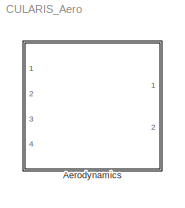
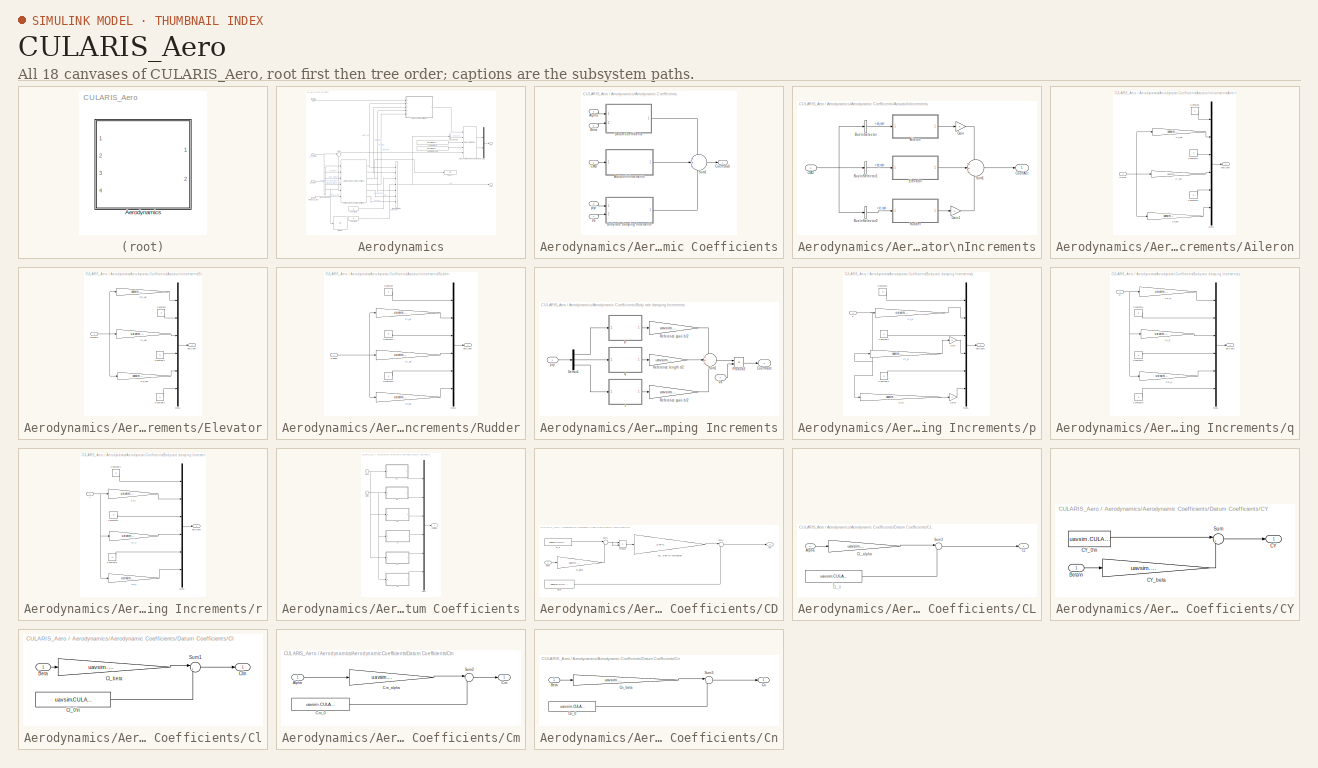
[diagram: thumbnail index - all 18 canvases of the model, root first then tree order]
MODEL CULARIS_Aero
KIND model
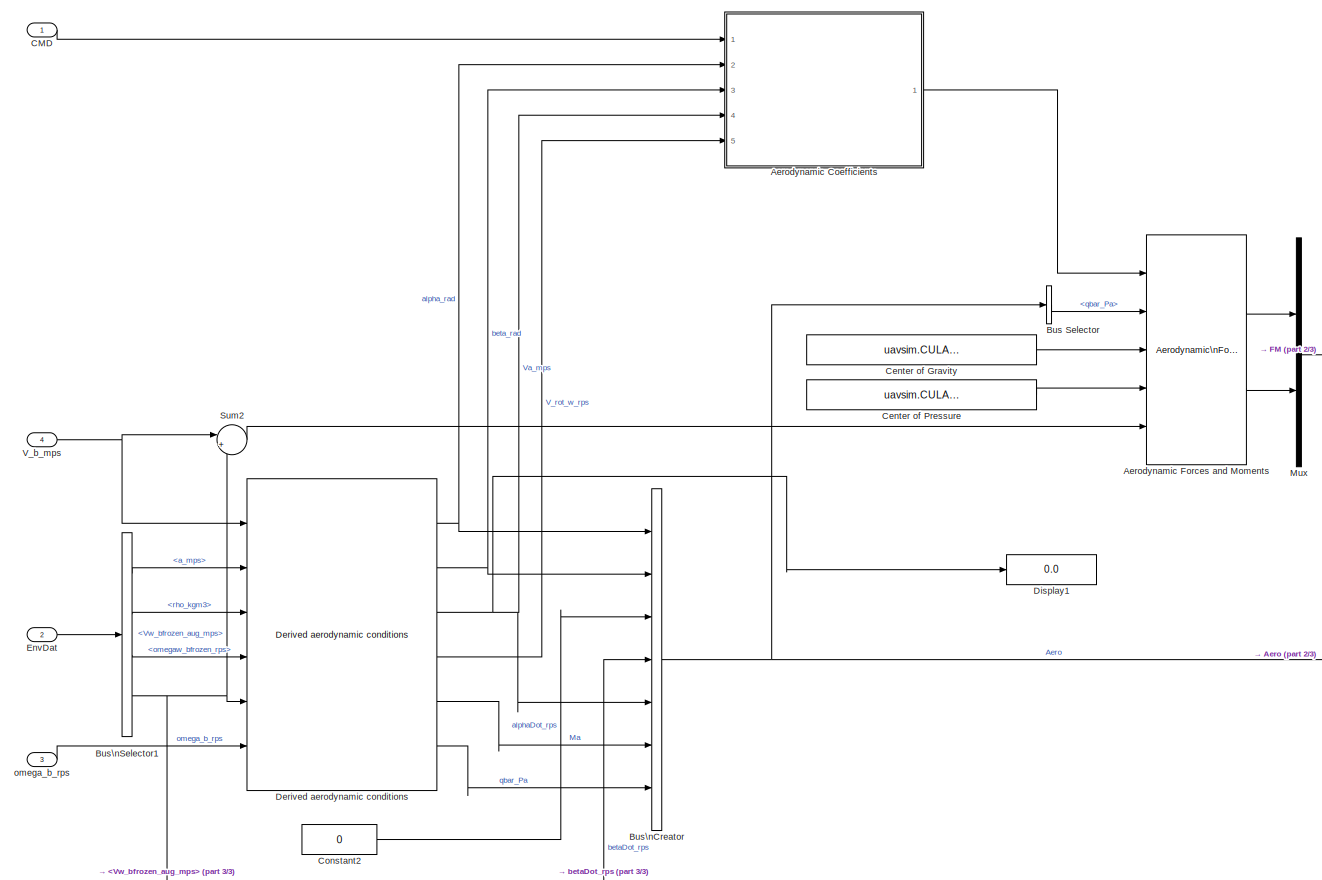
[diagram: Aerodynamics - part 1/3, most of the canvas]
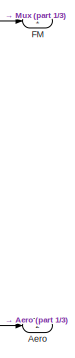
[diagram: Aerodynamics - part 2/3, middle right region]
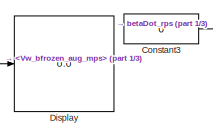
[diagram: Aerodynamics - part 3/3, bottom left region]
BLOCK [SubSystem] Aerodynamics
  FunctionWithSeparateData = off
  MaskHideContents = off
  MinAlgLoopOccurrences = off
  Opaque = off
  Ports = [4, 2]
  PropExecContextOutsideSubsystem = off
  RTWSystemCode = Auto
  RequestExecContextInheritance = off
  SID = 1
BLOCK [Outport] Aerodynamics/Aero
  IconDisplay = Port number
  Port = 2
  SID = 155
BLOCK [SubSystem] Aerodynamics/Aerodynamic Coefficients
  FunctionWithSeparateData = off
  MaskHideContents = off
  MinAlgLoopOccurrences = off
  Opaque = off
  Ports = [5, 1]
  PropExecContextOutsideSubsystem = off
  RTWSystemCode = Auto
  RequestExecContextInheritance = off
  SID = 6
BLOCK [SubSystem] Aerodynamics/Aerodynamic Coefficients/Actuator\nIncrements
  FunctionWithSeparateData = off
  MaskHideContents = off
  MinAlgLoopOccurrences = off
  Opaque = off
  Ports = [1, 1]
  PropExecContextOutsideSubsystem = off
  RTWSystemCode = Auto
  RequestExecContextInheritance = off
  SID = 12
BLOCK [SubSystem] Aerodynamics/Aerodynamic Coefficients/Actuator\nIncrements/Aileron
  FunctionWithSeparateData = off
  MaskHideContents = off
  MinAlgLoopOccurrences = off
  Opaque = off
  Ports = [1, 1]
  PropExecContextOutsideSubsystem = off
  RTWSystemCode = Auto
  RequestExecContextInheritance = off
  SID = 14
BLOCK [Inport] Aerodynamics/Aerodynamic Coefficients/Actuator\nIncrements/Aileron/Aileron
  IconDisplay = Port number
  SID = 15
BLOCK [Gain] Aerodynamics/Aerodynamic Coefficients/Actuator\nIncrements/Aileron/CY_da
  Gain = uavsim.CULARIS.CY_da
  OutDataTypeStr = Inherit: Inherit via internal rule
  ParamDataTypeStr = Inherit: Inherit via internal rule
  SID = 16
  SaturateOnIntegerOverflow = off
BLOCK [Gain] Aerodynamics/Aerodynamic Coefficients/Actuator\nIncrements/Aileron/Cl_da
  Gain = uavsim.CULARIS.Cl_da
  OutDataTypeStr = Inherit: Inherit via internal rule
  ParamDataTypeStr = Inherit: Inherit via internal rule
  SID = 17
  SaturateOnIntegerOverflow = off
BLOCK [Gain] Aerodynamics/Aerodynamic Coefficients/Actuator\nIncrements/Aileron/Cn_da
  Gain = uavsim.CULARIS.Cn_da
  OutDataTypeStr = Inherit: Inherit via internal rule
  ParamDataTypeStr = Inherit: Inherit via internal rule
  SID = 18
  SaturateOnIntegerOverflow = off
BLOCK [Constant] Aerodynamics/Aerodynamic Coefficients/Actuator\nIncrements/Aileron/Constant
  SID = 19
  Value = 0
BLOCK [Constant] Aerodynamics/Aerodynamic Coefficients/Actuator\nIncrements/Aileron/Constant1
  SID = 20
  Value = 0
BLOCK [Constant] Aerodynamics/Aerodynamic Coefficients/Actuator\nIncrements/Aileron/Constant2
  SID = 21
  Value = 0
BLOCK [Mux] Aerodynamics/Aerodynamic Coefficients/Actuator\nIncrements/Aileron/Mux1
  Inputs = 6
  Ports = [6, 1]
  SID = 22
BLOCK [Outport] Aerodynamics/Aerodynamic Coefficients/Actuator\nIncrements/Aileron/delCoeff
  IconDisplay = Port number
  SID = 23
BLOCK [BusSelector] Aerodynamics/Aerodynamic Coefficients/Actuator\nIncrements/Bus\nSelector
  OutputSignals = da_rad
  Ports = [1, 1]
  SID = 24
BLOCK [BusSelector] Aerodynamics/Aerodynamic Coefficients/Actuator\nIncrements/Bus\nSelector1
  OutputSignals = de_rad
  Ports = [1, 1]
  SID = 25
BLOCK [BusSelector] Aerodynamics/Aerodynamic Coefficients/Actuator\nIncrements/Bus\nSelector2
  OutputSignals = dr_rad
  Ports = [1, 1]
  SID = 26
BLOCK [Inport] Aerodynamics/Aerodynamic Coefficients/Actuator\nIncrements/CMD
  IconDisplay = Port number
  SID = 13
BLOCK [Outport] Aerodynamics/Aerodynamic Coefficients/Actuator\nIncrements/CoeffAct
  IconDisplay = Port number
  InitialOutput = 0
  SID = 50
BLOCK [SubSystem] Aerodynamics/Aerodynamic Coefficients/Actuator\nIncrements/Elevator
  FunctionWithSeparateData = off
  MaskHideContents = off
  MinAlgLoopOccurrences = off
  Opaque = off
  Ports = [1, 1]
  PropExecContextOutsideSubsystem = off
  RTWSystemCode = Auto
  RequestExecContextInheritance = off
  SID = 27
BLOCK [Gain] Aerodynamics/Aerodynamic Coefficients/Actuator\nIncrements/Elevator/CD_de
  Gain = uavsim.CULARIS.CD_de
  OutDataTypeStr = Inherit: Inherit via internal rule
  ParamDataTypeStr = Inherit: Inherit via internal rule
  SID = 29
  SaturateOnIntegerOverflow = off
BLOCK [Gain] Aerodynamics/Aerodynamic Coefficients/Actuator\nIncrements/Elevator/CL_de
  Gain = uavsim.CULARIS.CL_de
  OutDataTypeStr = Inherit: Inherit via internal rule
  ParamDataTypeStr = Inherit: Inherit via internal rule
  SID = 30
  SaturateOnIntegerOverflow = off
BLOCK [Gain] Aerodynamics/Aerodynamic Coefficients/Actuator\nIncrements/Elevator/Cm_de
  Gain = uavsim.CULARIS.Cm_de
  OutDataTypeStr = Inherit: Inherit via internal rule
  ParamDataTypeStr = Inherit: Inherit via internal rule
  SID = 31
  SaturateOnIntegerOverflow = off
BLOCK [Constant] Aerodynamics/Aerodynamic Coefficients/Actuator\nIncrements/Elevator/Constant
  SID = 32
  Value = 0
BLOCK [Constant] Aerodynamics/Aerodynamic Coefficients/Actuator\nIncrements/Elevator/Constant1
  SID = 33
  Value = 0
BLOCK [Constant] Aerodynamics/Aerodynamic Coefficients/Actuator\nIncrements/Elevator/Constant2
  SID = 34
  Value = 0
BLOCK [Inport] Aerodynamics/Aerodynamic Coefficients/Actuator\nIncrements/Elevator/Elevator
  IconDisplay = Port number
  SID = 28
BLOCK [Mux] Aerodynamics/Aerodynamic Coefficients/Actuator\nIncrements/Elevator/Mux1
  Inputs = 6
  Ports = [6, 1]
  SID = 35
BLOCK [Outport] Aerodynamics/Aerodynamic Coefficients/Actuator\nIncrements/Elevator/delCoeff
  IconDisplay = Port number
  SID = 36
BLOCK [Gain] Aerodynamics/Aerodynamic Coefficients/Actuator\nIncrements/Gain
  OutDataTypeStr = Inherit: Inherit via internal rule
  ParamDataTypeStr = Inherit: Inherit via internal rule
  SID = 37
  SaturateOnIntegerOverflow = off
BLOCK [Gain] Aerodynamics/Aerodynamic Coefficients/Actuator\nIncrements/Gain1
  OutDataTypeStr = Inherit: Inherit via internal rule
  ParamDataTypeStr = Inherit: Inherit via internal rule
  SID = 38
  SaturateOnIntegerOverflow = off
BLOCK [SubSystem] Aerodynamics/Aerodynamic Coefficients/Actuator\nIncrements/Rudder
  FunctionWithSeparateData = off
  MaskHideContents = off
  MinAlgLoopOccurrences = off
  Opaque = off
  Ports = [1, 1]
  PropExecContextOutsideSubsystem = off
  RTWSystemCode = Auto
  RequestExecContextInheritance = off
  SID = 39
BLOCK [Gain] Aerodynamics/Aerodynamic Coefficients/Actuator\nIncrements/Rudder/CY_dr
  Gain = uavsim.CULARIS.CY_dr
  OutDataTypeStr = Inherit: Inherit via internal rule
  ParamDataTypeStr = Inherit: Inherit via internal rule
  SID = 41
  SaturateOnIntegerOverflow = off
BLOCK [Gain] Aerodynamics/Aerodynamic Coefficients/Actuator\nIncrements/Rudder/Cl_dr
  Gain = uavsim.CULARIS.Cl_dr
  OutDataTypeStr = Inherit: Inherit via internal rule
  ParamDataTypeStr = Inherit: Inherit via internal rule
  SID = 42
  SaturateOnIntegerOverflow = off
BLOCK [Gain] Aerodynamics/Aerodynamic Coefficients/Actuator\nIncrements/Rudder/Cn_dr
  Gain = uavsim.CULARIS.Cn_dr
  OutDataTypeStr = Inherit: Inherit via internal rule
  ParamDataTypeStr = Inherit: Inherit via internal rule
  SID = 43
  SaturateOnIntegerOverflow = off
BLOCK [Constant] Aerodynamics/Aerodynamic Coefficients/Actuator\nIncrements/Rudder/Constant
  SID = 44
  Value = 0
BLOCK [Constant] Aerodynamics/Aerodynamic Coefficients/Actuator\nIncrements/Rudder/Constant1
  SID = 45
  Value = 0
BLOCK [Constant] Aerodynamics/Aerodynamic Coefficients/Actuator\nIncrements/Rudder/Constant2
  SID = 46
  Value = 0
BLOCK [Mux] Aerodynamics/Aerodynamic Coefficients/Actuator\nIncrements/Rudder/Mux1
  Inputs = 6
  Ports = [6, 1]
  SID = 47
BLOCK [Inport] Aerodynamics/Aerodynamic Coefficients/Actuator\nIncrements/Rudder/Rudder
  IconDisplay = Port number
  SID = 40
BLOCK [Outport] Aerodynamics/Aerodynamic Coefficients/Actuator\nIncrements/Rudder/delCoeff
  IconDisplay = Port number
  SID = 48
BLOCK [Sum] Aerodynamics/Aerodynamic Coefficients/Actuator\nIncrements/Sum1
  IconShape = round
  Inputs = +++
  Ports = [3, 1]
  SID = 49
BLOCK [Inport] Aerodynamics/Aerodynamic Coefficients/Alpha
  IconDisplay = Port number
  Port = 2
  SID = 8
BLOCK [Inport] Aerodynamics/Aerodynamic Coefficients/Beta
  IconDisplay = Port number
  Port = 3
  SID = 9
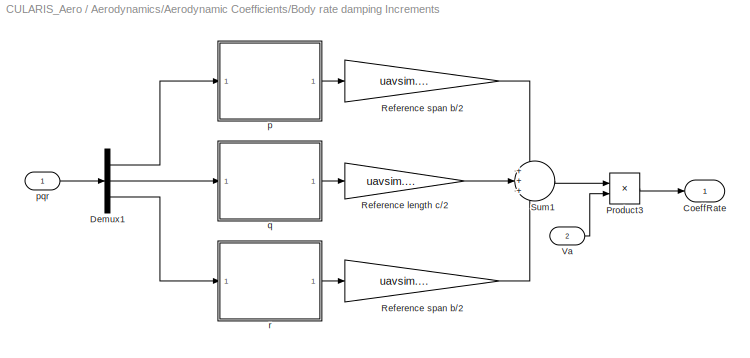
BLOCK [SubSystem] Aerodynamics/Aerodynamic Coefficients/Body rate damping Increments
  FunctionWithSeparateData = off
  MaskHideContents = off
  MinAlgLoopOccurrences = off
  Opaque = off
  Ports = [2, 1]
  PropExecContextOutsideSubsystem = off
  RTWSystemCode = Auto
  RequestExecContextInheritance = off
  SID = 51
BLOCK [Outport] Aerodynamics/Aerodynamic Coefficients/Body rate damping Increments/CoeffRate
  IconDisplay = Port number
  InitialOutput = 0
  SID = 92
BLOCK [Demux] Aerodynamics/Aerodynamic Coefficients/Body rate damping Increments/Demux1
  Outputs = 3
  Ports = [1, 3]
  SID = 54
BLOCK [Product] Aerodynamics/Aerodynamic Coefficients/Body rate damping Increments/Product3
  Inputs = */
  Ports = [2, 1]
  RndMeth = Floor
  SID = 55
BLOCK [Gain] Aerodynamics/Aerodynamic Coefficients/Body rate damping Increments/Reference length c//2
  Gain = uavsim.CULARIS.c/2
  OutDataTypeStr = Inherit: Inherit via internal rule
  ParamDataTypeStr = Inherit: Inherit via internal rule
  SID = 56
  SaturateOnIntegerOverflow = off
BLOCK [Gain] Aerodynamics/Aerodynamic Coefficients/Body rate damping Increments/Reference span b//2
  Gain = uavsim.CULARIS.b/2
  OutDataTypeStr = Inherit: Inherit via internal rule
  ParamDataTypeStr = Inherit: Inherit via internal rule
  SID = 57
  SaturateOnIntegerOverflow = off
BLOCK [Gain] Aerodynamics/Aerodynamic Coefficients/Body rate damping Increments/Reference span b//2 
  Gain = uavsim.CULARIS.b/2
  OutDataTypeStr = Inherit: Inherit via internal rule
  ParamDataTypeStr = Inherit: Inherit via internal rule
  SID = 58
  SaturateOnIntegerOverflow = off
BLOCK [Sum] Aerodynamics/Aerodynamic Coefficients/Body rate damping Increments/Sum1
  IconShape = round
  Inputs = +++
  Ports = [3, 1]
  SID = 59
BLOCK [Inport] Aerodynamics/Aerodynamic Coefficients/Body rate damping Increments/Va
  IconDisplay = Port number
  Port = 2
  SID = 53
BLOCK [SubSystem] Aerodynamics/Aerodynamic Coefficients/Body rate damping Increments/p
  FunctionWithSeparateData = off
  MaskHideContents = off
  MinAlgLoopOccurrences = off
  Opaque = off
  Ports = [1, 1]
  PropExecContextOutsideSubsystem = off
  RTWSystemCode = Auto
  RequestExecContextInheritance = off
  SID = 60
BLOCK [Gain] Aerodynamics/Aerodynamic Coefficients/Body rate damping Increments/p/CY_p
  Gain = uavsim.CULARIS.CY_p
  OutDataTypeStr = Inherit: Inherit via internal rule
  ParamDataTypeStr = Inherit: Inherit via internal rule
  SID = 62
  SaturateOnIntegerOverflow = off
BLOCK [Gain] Aerodynamics/Aerodynamic Coefficients/Body rate damping Increments/p/Cl_p
  Gain = uavsim.CULARIS.Cl_p
  OutDataTypeStr = Inherit: Inherit via internal rule
  ParamDataTypeStr = Inherit: Inherit via internal rule
  SID = 63
  SaturateOnIntegerOverflow = off
BLOCK [Gain] Aerodynamics/Aerodynamic Coefficients/Body rate damping Increments/p/Cn_p
  Gain = uavsim.CULARIS.Cn_p
  OutDataTypeStr = Inherit: Inherit via internal rule
  ParamDataTypeStr = Inherit: Inherit via internal rule
  SID = 64
  SaturateOnIntegerOverflow = off
BLOCK [Constant] Aerodynamics/Aerodynamic Coefficients/Body rate damping Increments/p/Constant1
  SID = 65
  Value = 0
BLOCK [Constant] Aerodynamics/Aerodynamic Coefficients/Body rate damping Increments/p/Constant2
  SID = 66
  Value = 0
BLOCK [Constant] Aerodynamics/Aerodynamic Coefficients/Body rate damping Increments/p/Constant3
  SID = 67
  Value = 0
BLOCK [Gain] Aerodynamics/Aerodynamic Coefficients/Body rate damping Increments/p/Gain
  OutDataTypeStr = Inherit: Inherit via internal rule
  ParamDataTypeStr = Inherit: Inherit via internal rule
  SID = 68
  SaturateOnIntegerOverflow = off
BLOCK [Gain] Aerodynamics/Aerodynamic Coefficients/Body rate damping Increments/p/Gain1
  OutDataTypeStr = Inherit: Inherit via internal rule
  ParamDataTypeStr = Inherit: Inherit via internal rule
  SID = 69
  SaturateOnIntegerOverflow = off
BLOCK [Mux] Aerodynamics/Aerodynamic Coefficients/Body rate damping Increments/p/Mux1
  Inputs = 6
  Ports = [6, 1]
  SID = 70
BLOCK [Outport] Aerodynamics/Aerodynamic Coefficients/Body rate damping Increments/p/delCoeff
  IconDisplay = Port number
  SID = 71
BLOCK [Inport] Aerodynamics/Aerodynamic Coefficients/Body rate damping Increments/p/p
  IconDisplay = Port number
  SID = 61
BLOCK [Inport] Aerodynamics/Aerodynamic Coefficients/Body rate damping Increments/pqr
  IconDisplay = Port number
  SID = 52
BLOCK [SubSystem] Aerodynamics/Aerodynamic Coefficients/Body rate damping Increments/q
  FunctionWithSeparateData = off
  MaskHideContents = off
  MinAlgLoopOccurrences = off
  Opaque = off
  Ports = [1, 1]
  PropExecContextOutsideSubsystem = off
  RTWSystemCode = Auto
  RequestExecContextInheritance = off
  SID = 72
BLOCK [Gain] Aerodynamics/Aerodynamic Coefficients/Body rate damping Increments/q/CD_q
  Gain = uavsim.CULARIS.CD_q
  OutDataTypeStr = Inherit: Inherit via internal rule
  ParamDataTypeStr = Inherit: Inherit via internal rule
  SID = 74
  SaturateOnIntegerOverflow = off
BLOCK [Gain] Aerodynamics/Aerodynamic Coefficients/Body rate damping Increments/q/CL_q
  Gain = uavsim.CULARIS.CL_q
  OutDataTypeStr = Inherit: Inherit via internal rule
  ParamDataTypeStr = Inherit: Inherit via internal rule
  SID = 75
  SaturateOnIntegerOverflow = off
BLOCK [Gain] Aerodynamics/Aerodynamic Coefficients/Body rate damping Increments/q/Cm_q
  Gain = uavsim.CULARIS.Cm_q
  OutDataTypeStr = Inherit: Inherit via internal rule
  ParamDataTypeStr = Inherit: Inherit via internal rule
  SID = 76
  SaturateOnIntegerOverflow = off
BLOCK [Constant] Aerodynamics/Aerodynamic Coefficients/Body rate damping Increments/q/Constant1
  SID = 77
  Value = 0
BLOCK [Constant] Aerodynamics/Aerodynamic Coefficients/Body rate damping Increments/q/Constant2
  SID = 78
  Value = 0
BLOCK [Constant] Aerodynamics/Aerodynamic Coefficients/Body rate damping Increments/q/Constant3
  SID = 79
  Value = 0
BLOCK [Mux] Aerodynamics/Aerodynamic Coefficients/Body rate damping Increments/q/Mux1
  Inputs = 6
  Ports = [6, 1]
  SID = 80
BLOCK [Outport] Aerodynamics/Aerodynamic Coefficients/Body rate damping Increments/q/delCoeff
  IconDisplay = Port number
  SID = 81
BLOCK [Inport] Aerodynamics/Aerodynamic Coefficients/Body rate damping Increments/q/q
  IconDisplay = Port number
  SID = 73
BLOCK [SubSystem] Aerodynamics/Aerodynamic Coefficients/Body rate damping Increments/r
  FunctionWithSeparateData = off
  MaskHideContents = off
  MinAlgLoopOccurrences = off
  Opaque = off
  Ports = [1, 1]
  PropExecContextOutsideSubsystem = off
  RTWSystemCode = Auto
  RequestExecContextInheritance = off
  SID = 82
BLOCK [Gain] Aerodynamics/Aerodynamic Coefficients/Body rate damping Increments/r/CY_r
  Gain = uavsim.CULARIS.CY_r
  OutDataTypeStr = Inherit: Inherit via internal rule
  ParamDataTypeStr = Inherit: Inherit via internal rule
  SID = 84
  SaturateOnIntegerOverflow = off
BLOCK [Gain] Aerodynamics/Aerodynamic Coefficients/Body rate damping Increments/r/Cl_r
  Gain = uavsim.CULARIS.Cl_r
  OutDataTypeStr = Inherit: Inherit via internal rule
  ParamDataTypeStr = Inherit: Inherit via internal rule
  SID = 85
  SaturateOnIntegerOverflow = off
BLOCK [Gain] Aerodynamics/Aerodynamic Coefficients/Body rate damping Increments/r/Cn_r
  Gain = uavsim.CULARIS.Cn_r
  OutDataTypeStr = Inherit: Inherit via internal rule
  ParamDataTypeStr = Inherit: Inherit via internal rule
  SID = 86
  SaturateOnIntegerOverflow = off
BLOCK [Constant] Aerodynamics/Aerodynamic Coefficients/Body rate damping Increments/r/Constant1
  SID = 87
  Value = 0
BLOCK [Constant] Aerodynamics/Aerodynamic Coefficients/Body rate damping Increments/r/Constant2
  SID = 88
  Value = 0
BLOCK [Constant] Aerodynamics/Aerodynamic Coefficients/Body rate damping Increments/r/Constant3
  SID = 89
  Value = 0
BLOCK [Mux] Aerodynamics/Aerodynamic Coefficients/Body rate damping Increments/r/Mux1
  Inputs = 6
  Ports = [6, 1]
  SID = 90
BLOCK [Outport] Aerodynamics/Aerodynamic Coefficients/Body rate damping Increments/r/delCoeff
  IconDisplay = Port number
  SID = 91
BLOCK [Inport] Aerodynamics/Aerodynamic Coefficients/Body rate damping Increments/r/r
  IconDisplay = Port number
  SID = 83
BLOCK [Inport] Aerodynamics/Aerodynamic Coefficients/CMD
  IconDisplay = Port number
  SID = 7
BLOCK [Outport] Aerodynamics/Aerodynamic Coefficients/CoeffStab
  IconDisplay = Port number
  SID = 140
BLOCK [SubSystem] Aerodynamics/Aerodynamic Coefficients/Datum Coefficients
  FunctionWithSeparateData = off
  MaskHideContents = off
  MinAlgLoopOccurrences = off
  Opaque = off
  Ports = [2, 1]
  PropExecContextOutsideSubsystem = off
  RTWSystemCode = Auto
  RequestExecContextInheritance = off
  SID = 93
BLOCK [Inport] Aerodynamics/Aerodynamic Coefficients/Datum Coefficients/Alpha
  IconDisplay = Port number
  SID = 94
BLOCK [Inport] Aerodynamics/Aerodynamic Coefficients/Datum Coefficients/Beta
  IconDisplay = Port number
  Port = 2
  SID = 95
BLOCK [SubSystem] Aerodynamics/Aerodynamic Coefficients/Datum Coefficients/CD
  FunctionWithSeparateData = off
  MaskHideContents = off
  MinAlgLoopOccurrences = off
  Opaque = off
  Ports = [1, 1]
  PropExecContextOutsideSubsystem = off
  RTWSystemCode = Auto
  RequestExecContextInheritance = off
  SID = 96
BLOCK [Inport] Aerodynamics/Aerodynamic Coefficients/Datum Coefficients/CD/Alpha
  IconDisplay = Port number
  SID = 97
BLOCK [Outport] Aerodynamics/Aerodynamic Coefficients/Datum Coefficients/CD/CD
  IconDisplay = Port number
  SID = 105
BLOCK [Constant] Aerodynamics/Aerodynamic Coefficients/Datum Coefficients/CD/CD_0
  SID = 98
  Value = uavsim.CULARIS.CD_0
BLOCK [Constant] Aerodynamics/Aerodynamic Coefficients/Datum Coefficients/CD/CL_0
  SID = 99
  Value = uavsim.CULARIS.CL_0
BLOCK [Gain] Aerodynamics/Aerodynamic Coefficients/Datum Coefficients/CD/CL_alpha
  Gain = uavsim.CULARIS.CL_alpha
  OutDataTypeStr = Inherit: Inherit via internal rule
  ParamDataTypeStr = Inherit: Inherit via internal rule
  SID = 100
  SaturateOnIntegerOverflow = off
BLOCK [Product] Aerodynamics/Aerodynamic Coefficients/Datum Coefficients/CD/Product
  InputSameDT = off
  OutDataTypeStr = Inherit: Inherit via internal rule
  Ports = [2, 1]
  SID = 101
  SaturateOnIntegerOverflow = off
BLOCK [Sum] Aerodynamics/Aerodynamic Coefficients/Datum Coefficients/CD/Sum1
  IconShape = round
  InputSameDT = off
  Inputs = |++
  OutDataTypeStr = Inherit: Inherit via internal rule
  Ports = [2, 1]
  SID = 102
  SaturateOnIntegerOverflow = off
BLOCK [Sum] Aerodynamics/Aerodynamic Coefficients/Datum Coefficients/CD/Sum2
  IconShape = round
  InputSameDT = off
  Inputs = |++
  OutDataTypeStr = Inherit: Inherit via internal rule
  Ports = [2, 1]
  SID = 103
  SaturateOnIntegerOverflow = off
BLOCK [Gain] Aerodynamics/Aerodynamic Coefficients/Datum Coefficients/CD/sec. order lift contribution
  Gain = 1/(pi*uavsim.CULARIS.oswald*uavsim.CULARIS.AR )
  OutDataTypeStr = Inherit: Inherit via internal rule
  ParamDataTypeStr = Inherit: Inherit via internal rule
  SID = 104
  SaturateOnIntegerOverflow = off
BLOCK [SubSystem] Aerodynamics/Aerodynamic Coefficients/Datum Coefficients/CL
  FunctionWithSeparateData = off
  MaskHideContents = off
  MinAlgLoopOccurrences = off
  Opaque = off
  Ports = [1, 1]
  PropExecContextOutsideSubsystem = off
  RTWSystemCode = Auto
  RequestExecContextInheritance = off
  SID = 106
BLOCK [Constant] Aerodynamics/Aerodynamic Coefficients/Datum Coefficients/CL/1
  SID = 108
  Value = uavsim.CULARIS.CL_0
BLOCK [Inport] Aerodynamics/Aerodynamic Coefficients/Datum Coefficients/CL/Alpha
  IconDisplay = Port number
  SID = 107
BLOCK [Outport] Aerodynamics/Aerodynamic Coefficients/Datum Coefficients/CL/CL
  IconDisplay = Port number
  SID = 111
BLOCK [Gain] Aerodynamics/Aerodynamic Coefficients/Datum Coefficients/CL/CL_alpha
  Gain = uavsim.CULARIS.CL_alpha
  OutDataTypeStr = Inherit: Inherit via internal rule
  ParamDataTypeStr = Inherit: Inherit via internal rule
  SID = 109
  SaturateOnIntegerOverflow = off
BLOCK [Sum] Aerodynamics/Aerodynamic Coefficients/Datum Coefficients/CL/Sum2
  IconShape = round
  InputSameDT = off
  Inputs = |++
  OutDataTypeStr = Inherit: Inherit via internal rule
  Ports = [2, 1]
  SID = 110
  SaturateOnIntegerOverflow = off
BLOCK [SubSystem] Aerodynamics/Aerodynamic Coefficients/Datum Coefficients/CY
  FunctionWithSeparateData = off
  MaskHideContents = off
  MinAlgLoopOccurrences = off
  Opaque = off
  Ports = [1, 1]
  PropExecContextOutsideSubsystem = off
  RTWSystemCode = Auto
  RequestExecContextInheritance = off
  SID = 113
BLOCK [Inport] Aerodynamics/Aerodynamic Coefficients/Datum Coefficients/CY/Beta\n
  IconDisplay = Port number
  SID = 114
BLOCK [Outport] Aerodynamics/Aerodynamic Coefficients/Datum Coefficients/CY/CY
  IconDisplay = Port number
  SID = 118
BLOCK [Constant] Aerodynamics/Aerodynamic Coefficients/Datum Coefficients/CY/CY_0\n
  SID = 115
  Value = uavsim.CULARIS.CY_0
BLOCK [Gain] Aerodynamics/Aerodynamic Coefficients/Datum Coefficients/CY/CY_beta
  Gain = uavsim.CULARIS.CY_beta
  SID = 116
BLOCK [Sum] Aerodynamics/Aerodynamic Coefficients/Datum Coefficients/CY/Sum
  IconShape = round
  InputSameDT = off
  Inputs = |++
  OutDataTypeStr = Inherit: Inherit via internal rule
  Ports = [2, 1]
  SID = 117
  SaturateOnIntegerOverflow = off
BLOCK [SubSystem] Aerodynamics/Aerodynamic Coefficients/Datum Coefficients/Cl
  FunctionWithSeparateData = off
  MaskHideContents = off
  MinAlgLoopOccurrences = off
  Opaque = off
  Ports = [1, 1]
  PropExecContextOutsideSubsystem = off
  RTWSystemCode = Auto
  RequestExecContextInheritance = off
  SID = 119
BLOCK [Inport] Aerodynamics/Aerodynamic Coefficients/Datum Coefficients/Cl/Beta
  IconDisplay = Port number
  SID = 120
BLOCK [Outport] Aerodynamics/Aerodynamic Coefficients/Datum Coefficients/Cl/Cl\n
  IconDisplay = Port number
  SID = 124
BLOCK [Constant] Aerodynamics/Aerodynamic Coefficients/Datum Coefficients/Cl/Cl_0\n
  SID = 121
  Value = uavsim.CULARIS.Cl_0
BLOCK [Gain] Aerodynamics/Aerodynamic Coefficients/Datum Coefficients/Cl/Cl_beta
  Gain = uavsim.CULARIS.Cl_beta
  SID = 122
BLOCK [Sum] Aerodynamics/Aerodynamic Coefficients/Datum Coefficients/Cl/Sum1
  IconShape = round
  InputSameDT = off
  Inputs = |++
  OutDataTypeStr = Inherit: Inherit via internal rule
  Ports = [2, 1]
  SID = 123
  SaturateOnIntegerOverflow = off
BLOCK [SubSystem] Aerodynamics/Aerodynamic Coefficients/Datum Coefficients/Cm
  FunctionWithSeparateData = off
  MaskHideContents = off
  MinAlgLoopOccurrences = off
  Opaque = off
  Ports = [1, 1]
  PropExecContextOutsideSubsystem = off
  RTWSystemCode = Auto
  RequestExecContextInheritance = off
  SID = 125
BLOCK [Inport] Aerodynamics/Aerodynamic Coefficients/Datum Coefficients/Cm/Alpha
  IconDisplay = Port number
  SID = 126
BLOCK [Outport] Aerodynamics/Aerodynamic Coefficients/Datum Coefficients/Cm/Cm
  IconDisplay = Port number
  SID = 130
BLOCK [Constant] Aerodynamics/Aerodynamic Coefficients/Datum Coefficients/Cm/Cm_0
  SID = 127
  Value = uavsim.CULARIS.Cm_0
BLOCK [Gain] Aerodynamics/Aerodynamic Coefficients/Datum Coefficients/Cm/Cm_alpha
  Gain = uavsim.CULARIS.Cm_alpha
  SID = 128
BLOCK [Sum] Aerodynamics/Aerodynamic Coefficients/Datum Coefficients/Cm/Sum2
  IconShape = round
  InputSameDT = off
  Inputs = |++
  OutDataTypeStr = Inherit: Inherit via internal rule
  Ports = [2, 1]
  SID = 129
  SaturateOnIntegerOverflow = off
BLOCK [SubSystem] Aerodynamics/Aerodynamic Coefficients/Datum Coefficients/Cn
  FunctionWithSeparateData = off
  MaskHideContents = off
  MinAlgLoopOccurrences = off
  Opaque = off
  Ports = [1, 1]
  PropExecContextOutsideSubsystem = off
  RTWSystemCode = Auto
  RequestExecContextInheritance = off
  SID = 131
BLOCK [Inport] Aerodynamics/Aerodynamic Coefficients/Datum Coefficients/Cn/Beta
  IconDisplay = Port number
  SID = 132
BLOCK [Outport] Aerodynamics/Aerodynamic Coefficients/Datum Coefficients/Cn/Cn
  IconDisplay = Port number
  SID = 136
BLOCK [Constant] Aerodynamics/Aerodynamic Coefficients/Datum Coefficients/Cn/Cn_0
  SID = 133
  Value = uavsim.CULARIS.Cn_0
BLOCK [Gain] Aerodynamics/Aerodynamic Coefficients/Datum Coefficients/Cn/Cn_beta
  Gain = uavsim.CULARIS.Cn_beta
  SID = 134
BLOCK [Sum] Aerodynamics/Aerodynamic Coefficients/Datum Coefficients/Cn/Sum3
  IconShape = round
  InputSameDT = off
  Inputs = |++
  OutDataTypeStr = Inherit: Inherit via internal rule
  Ports = [2, 1]
  SID = 135
  SaturateOnIntegerOverflow = off
BLOCK [Outport] Aerodynamics/Aerodynamic Coefficients/Datum Coefficients/CoeffDat
  IconDisplay = Port number
  InitialOutput = 0
  SID = 138
BLOCK [Mux] Aerodynamics/Aerodynamic Coefficients/Datum Coefficients/Mux1
  Inputs = 6
  Ports = [6, 1]
  SID = 137
BLOCK [Sum] Aerodynamics/Aerodynamic Coefficients/Sum1
  IconShape = round
  Inputs = +++
  Ports = [3, 1]
  SID = 139
BLOCK [Inport] Aerodynamics/Aerodynamic Coefficients/Va
  IconDisplay = Port number
  Port = 4
  SID = 10
BLOCK [Inport] Aerodynamics/Aerodynamic Coefficients/pqr
  IconDisplay = Port number
  Port = 5
  SID = 11
BLOCK [Reference] Aerodynamics/Aerodynamic Forces and Moments   REF=aerolibadyn/Aerodynamic\nForces and Moments 
  Ports = [5, 2]
  S = uavsim.CULARIS.S
  SID = 141
  SourceBlock = aerolibadyn/Aerodynamic\nForces and Moments
  SourceType = Aerodynamic Forces and Moments
  b = uavsim.CULARIS.b
  cbar = uavsim.CULARIS.c
  inputAxes = Wind
  outputForceAxes = Body
  outputMomentAxes = Body
BLOCK [BusSelector] Aerodynamics/Bus Selector
  OutputSignals = qbar_Pa
  Ports = [1, 1]
  SID = 144
BLOCK [BusCreator] Aerodynamics/Bus\nCreator
  DisplayOption = bar
  Inputs = 7
  NonVirtualBus = on
  OutDataTypeStr = Bus: Aero
  Ports = [7, 1]
  SID = 142
BLOCK [BusSelector] Aerodynamics/Bus\nSelector1
  OutputSignals = Environment.a_mps,Environment.rho_kgm3,Environment.omegaw_bfrozen_rps,Vw_bfrozen_aug_mps
  Ports = [1, 4]
  SID = 143
BLOCK [Inport] Aerodynamics/CMD
  IconDisplay = Port number
  OutDataTypeStr = Bus: CMD
  SID = 2
BLOCK [Constant] Aerodynamics/Center of Gravity
  SID = 145
  SampleTime = 0
  Value = uavsim.CULARIS.centerOfGravity_b_m
BLOCK [Constant] Aerodynamics/Center of Pressure
  SID = 146
  SampleTime = 0
  Value = uavsim.CULARIS.aerodynamicCenter_b_m
BLOCK [Constant] Aerodynamics/Constant2
  SID = 147
  Value = 0
BLOCK [Constant] Aerodynamics/Constant3
  SID = 148
  Value = 0
BLOCK [Reference] Aerodynamics/Derived aerodynamic conditions  REF=uavsimBlockset_DerivedAerodynamicConditions/Derived aerodynamic conditions
  Ports = [6, 6]
  SID = 149
  SourceBlock = uavsimBlockset_DerivedAerodynamicConditions/Derived aerodynamic conditions
  SourceType = SubSystem
BLOCK [Display] Aerodynamics/Display
  Decimation = 1
  Ports = [1]
  SID = 150
BLOCK [Display] Aerodynamics/Display1
  Decimation = 1
  Ports = [1]
  SID = 151
BLOCK [Inport] Aerodynamics/EnvDat
  IconDisplay = Port number
  OutDataTypeStr = Bus: EnvironmentAug
  Port = 2
  SID = 3
BLOCK [Outport] Aerodynamics/FM
  IconDisplay = Port number
  SID = 154
BLOCK [Mux] Aerodynamics/Mux
  DisplayOption = bar
  Inputs = 2
  Ports = [2, 1]
  SID = 152
BLOCK [Sum] Aerodynamics/Sum2
  IconShape = round
  Inputs = |+-
  Ports = [2, 1]
  SID = 153
BLOCK [Inport] Aerodynamics/V_b_mps
  IconDisplay = Port number
  Port = 4
  SID = 5
BLOCK [Inport] Aerodynamics/omega_b_rps
  IconDisplay = Port number
  Port = 3
  SID = 4
ANNOTATION Aerodynamics/Aerodynamic Coefficients/Datum Coefficients/CL: CL_0
NET Aerodynamics/Aerodynamic Coefficients/Actuator\nIncrements/Aileron/Aileron:1 -> Aerodynamics/Aerodynamic Coefficients/Actuator\nIncrements/Aileron/CY_da:1, Aerodynamics/Aerodynamic Coefficients/Actuator\nIncrements/Aileron/Cl_da:1, Aerodynamics/Aerodynamic Coefficients/Actuator\nIncrements/Aileron/Cn_da:1
LINE Aerodynamics/Aerodynamic Coefficients/Actuator\nIncrements/Aileron/CY_da:1 -> Aerodynamics/Aerodynamic Coefficients/Actuator\nIncrements/Aileron/Mux1:2
LINE Aerodynamics/Aerodynamic Coefficients/Actuator\nIncrements/Aileron/Cl_da:1 -> Aerodynamics/Aerodynamic Coefficients/Actuator\nIncrements/Aileron/Mux1:4
LINE Aerodynamics/Aerodynamic Coefficients/Actuator\nIncrements/Aileron/Cn_da:1 -> Aerodynamics/Aerodynamic Coefficients/Actuator\nIncrements/Aileron/Mux1:6
LINE Aerodynamics/Aerodynamic Coefficients/Actuator\nIncrements/Aileron/Constant1:1 -> Aerodynamics/Aerodynamic Coefficients/Actuator\nIncrements/Aileron/Mux1:3
LINE Aerodynamics/Aerodynamic Coefficients/Actuator\nIncrements/Aileron/Constant2:1 -> Aerodynamics/Aerodynamic Coefficients/Actuator\nIncrements/Aileron/Mux1:5
LINE Aerodynamics/Aerodynamic Coefficients/Actuator\nIncrements/Aileron/Constant:1 -> Aerodynamics/Aerodynamic Coefficients/Actuator\nIncrements/Aileron/Mux1:1
LINE Aerodynamics/Aerodynamic Coefficients/Actuator\nIncrements/Aileron/Mux1:1 -> Aerodynamics/Aerodynamic Coefficients/Actuator\nIncrements/Aileron/delCoeff:1
LINE Aerodynamics/Aerodynamic Coefficients/Actuator\nIncrements/Aileron:1 -> Aerodynamics/Aerodynamic Coefficients/Actuator\nIncrements/Gain:1
LINE Aerodynamics/Aerodynamic Coefficients/Actuator\nIncrements/Bus\nSelector1:1 -> Aerodynamics/Aerodynamic Coefficients/Actuator\nIncrements/Elevator:1
LINE Aerodynamics/Aerodynamic Coefficients/Actuator\nIncrements/Bus\nSelector2:1 -> Aerodynamics/Aerodynamic Coefficients/Actuator\nIncrements/Rudder:1
LINE Aerodynamics/Aerodynamic Coefficients/Actuator\nIncrements/Bus\nSelector:1 -> Aerodynamics/Aerodynamic Coefficients/Actuator\nIncrements/Aileron:1
NET Aerodynamics/Aerodynamic Coefficients/Actuator\nIncrements/CMD:1 -> Aerodynamics/Aerodynamic Coefficients/Actuator\nIncrements/Bus\nSelector1:1, Aerodynamics/Aerodynamic Coefficients/Actuator\nIncrements/Bus\nSelector2:1, Aerodynamics/Aerodynamic Coefficients/Actuator\nIncrements/Bus\nSelector:1
LINE Aerodynamics/Aerodynamic Coefficients/Actuator\nIncrements/Elevator/CD_de:1 -> Aerodynamics/Aerodynamic Coefficients/Actuator\nIncrements/Elevator/Mux1:1
LINE Aerodynamics/Aerodynamic Coefficients/Actuator\nIncrements/Elevator/CL_de:1 -> Aerodynamics/Aerodynamic Coefficients/Actuator\nIncrements/Elevator/Mux1:3
LINE Aerodynamics/Aerodynamic Coefficients/Actuator\nIncrements/Elevator/Cm_de:1 -> Aerodynamics/Aerodynamic Coefficients/Actuator\nIncrements/Elevator/Mux1:5
LINE Aerodynamics/Aerodynamic Coefficients/Actuator\nIncrements/Elevator/Constant1:1 -> Aerodynamics/Aerodynamic Coefficients/Actuator\nIncrements/Elevator/Mux1:4
LINE Aerodynamics/Aerodynamic Coefficients/Actuator\nIncrements/Elevator/Constant2:1 -> Aerodynamics/Aerodynamic Coefficients/Actuator\nIncrements/Elevator/Mux1:6
LINE Aerodynamics/Aerodynamic Coefficients/Actuator\nIncrements/Elevator/Constant:1 -> Aerodynamics/Aerodynamic Coefficients/Actuator\nIncrements/Elevator/Mux1:2
NET Aerodynamics/Aerodynamic Coefficients/Actuator\nIncrements/Elevator/Elevator:1 -> Aerodynamics/Aerodynamic Coefficients/Actuator\nIncrements/Elevator/CD_de:1, Aerodynamics/Aerodynamic Coefficients/Actuator\nIncrements/Elevator/CL_de:1, Aerodynamics/Aerodynamic Coefficients/Actuator\nIncrements/Elevator/Cm_de:1
LINE Aerodynamics/Aerodynamic Coefficients/Actuator\nIncrements/Elevator/Mux1:1 -> Aerodynamics/Aerodynamic Coefficients/Actuator\nIncrements/Elevator/delCoeff:1
LINE Aerodynamics/Aerodynamic Coefficients/Actuator\nIncrements/Elevator:1 -> Aerodynamics/Aerodynamic Coefficients/Actuator\nIncrements/Sum1:2
LINE Aerodynamics/Aerodynamic Coefficients/Actuator\nIncrements/Gain1:1 -> Aerodynamics/Aerodynamic Coefficients/Actuator\nIncrements/Sum1:3
LINE Aerodynamics/Aerodynamic Coefficients/Actuator\nIncrements/Gain:1 -> Aerodynamics/Aerodynamic Coefficients/Actuator\nIncrements/Sum1:1
LINE Aerodynamics/Aerodynamic Coefficients/Actuator\nIncrements/Rudder/CY_dr:1 -> Aerodynamics/Aerodynamic Coefficients/Actuator\nIncrements/Rudder/Mux1:2
LINE Aerodynamics/Aerodynamic Coefficients/Actuator\nIncrements/Rudder/Cl_dr:1 -> Aerodynamics/Aerodynamic Coefficients/Actuator\nIncrements/Rudder/Mux1:4
LINE Aerodynamics/Aerodynamic Coefficients/Actuator\nIncrements/Rudder/Cn_dr:1 -> Aerodynamics/Aerodynamic Coefficients/Actuator\nIncrements/Rudder/Mux1:6
LINE Aerodynamics/Aerodynamic Coefficients/Actuator\nIncrements/Rudder/Constant1:1 -> Aerodynamics/Aerodynamic Coefficients/Actuator\nIncrements/Rudder/Mux1:3
LINE Aerodynamics/Aerodynamic Coefficients/Actuator\nIncrements/Rudder/Constant2:1 -> Aerodynamics/Aerodynamic Coefficients/Actuator\nIncrements/Rudder/Mux1:5
LINE Aerodynamics/Aerodynamic Coefficients/Actuator\nIncrements/Rudder/Constant:1 -> Aerodynamics/Aerodynamic Coefficients/Actuator\nIncrements/Rudder/Mux1:1
LINE Aerodynamics/Aerodynamic Coefficients/Actuator\nIncrements/Rudder/Mux1:1 -> Aerodynamics/Aerodynamic Coefficients/Actuator\nIncrements/Rudder/delCoeff:1
NET Aerodynamics/Aerodynamic Coefficients/Actuator\nIncrements/Rudder/Rudder:1 -> Aerodynamics/Aerodynamic Coefficients/Actuator\nIncrements/Rudder/CY_dr:1, Aerodynamics/Aerodynamic Coefficients/Actuator\nIncrements/Rudder/Cl_dr:1, Aerodynamics/Aerodynamic Coefficients/Actuator\nIncrements/Rudder/Cn_dr:1
LINE Aerodynamics/Aerodynamic Coefficients/Actuator\nIncrements/Rudder:1 -> Aerodynamics/Aerodynamic Coefficients/Actuator\nIncrements/Gain1:1
LINE Aerodynamics/Aerodynamic Coefficients/Actuator\nIncrements/Sum1:1 -> Aerodynamics/Aerodynamic Coefficients/Actuator\nIncrements/CoeffAct:1
LINE Aerodynamics/Aerodynamic Coefficients/Actuator\nIncrements:1 -> Aerodynamics/Aerodynamic Coefficients/Sum1:2
LINE Aerodynamics/Aerodynamic Coefficients/Alpha:1 -> Aerodynamics/Aerodynamic Coefficients/Datum Coefficients:1
LINE Aerodynamics/Aerodynamic Coefficients/Beta:1 -> Aerodynamics/Aerodynamic Coefficients/Datum Coefficients:2
LINE Aerodynamics/Aerodynamic Coefficients/Body rate damping Increments/Demux1:1 -> Aerodynamics/Aerodynamic Coefficients/Body rate damping Increments/p:1
LINE Aerodynamics/Aerodynamic Coefficients/Body rate damping Increments/Demux1:2 -> Aerodynamics/Aerodynamic Coefficients/Body rate damping Increments/q:1
LINE Aerodynamics/Aerodynamic Coefficients/Body rate damping Increments/Demux1:3 -> Aerodynamics/Aerodynamic Coefficients/Body rate damping Increments/r:1
LINE Aerodynamics/Aerodynamic Coefficients/Body rate damping Increments/Product3:1 -> Aerodynamics/Aerodynamic Coefficients/Body rate damping Increments/CoeffRate:1
LINE Aerodynamics/Aerodynamic Coefficients/Body rate damping Increments/Reference length c//2:1 -> Aerodynamics/Aerodynamic Coefficients/Body rate damping Increments/Sum1:2
LINE Aerodynamics/Aerodynamic Coefficients/Body rate damping Increments/Reference span b//2 :1 -> Aerodynamics/Aerodynamic Coefficients/Body rate damping Increments/Sum1:1
LINE Aerodynamics/Aerodynamic Coefficients/Body rate damping Increments/Reference span b//2:1 -> Aerodynamics/Aerodynamic Coefficients/Body rate damping Increments/Sum1:3
LINE Aerodynamics/Aerodynamic Coefficients/Body rate damping Increments/Sum1:1 -> Aerodynamics/Aerodynamic Coefficients/Body rate damping Increments/Product3:1
LINE Aerodynamics/Aerodynamic Coefficients/Body rate damping Increments/Va:1 -> Aerodynamics/Aerodynamic Coefficients/Body rate damping Increments/Product3:2
LINE Aerodynamics/Aerodynamic Coefficients/Body rate damping Increments/p/CY_p:1 -> Aerodynamics/Aerodynamic Coefficients/Body rate damping Increments/p/Mux1:2
LINE Aerodynamics/Aerodynamic Coefficients/Body rate damping Increments/p/Cl_p:1 -> Aerodynamics/Aerodynamic Coefficients/Body rate damping Increments/p/Gain:1
LINE Aerodynamics/Aerodynamic Coefficients/Body rate damping Increments/p/Cn_p:1 -> Aerodynamics/Aerodynamic Coefficients/Body rate damping Increments/p/Gain1:1
LINE Aerodynamics/Aerodynamic Coefficients/Body rate damping Increments/p/Constant1:1 -> Aerodynamics/Aerodynamic Coefficients/Body rate damping Increments/p/Mux1:1
LINE Aerodynamics/Aerodynamic Coefficients/Body rate damping Increments/p/Constant2:1 -> Aerodynamics/Aerodynamic Coefficients/Body rate damping Increments/p/Mux1:3
LINE Aerodynamics/Aerodynamic Coefficients/Body rate damping Increments/p/Constant3:1 -> Aerodynamics/Aerodynamic Coefficients/Body rate damping Increments/p/Mux1:5
LINE Aerodynamics/Aerodynamic Coefficients/Body rate damping Increments/p/Gain1:1 -> Aerodynamics/Aerodynamic Coefficients/Body rate damping Increments/p/Mux1:6
LINE Aerodynamics/Aerodynamic Coefficients/Body rate damping Increments/p/Gain:1 -> Aerodynamics/Aerodynamic Coefficients/Body rate damping Increments/p/Mux1:4
LINE Aerodynamics/Aerodynamic Coefficients/Body rate damping Increments/p/Mux1:1 -> Aerodynamics/Aerodynamic Coefficients/Body rate damping Increments/p/delCoeff:1
NET Aerodynamics/Aerodynamic Coefficients/Body rate damping Increments/p/p:1 -> Aerodynamics/Aerodynamic Coefficients/Body rate damping Increments/p/CY_p:1, Aerodynamics/Aerodynamic Coefficients/Body rate damping Increments/p/Cl_p:1, Aerodynamics/Aerodynamic Coefficients/Body rate damping Increments/p/Cn_p:1
LINE Aerodynamics/Aerodynamic Coefficients/Body rate damping Increments/p:1 -> Aerodynamics/Aerodynamic Coefficients/Body rate damping Increments/Reference span b//2 :1
LINE Aerodynamics/Aerodynamic Coefficients/Body rate damping Increments/pqr:1 -> Aerodynamics/Aerodynamic Coefficients/Body rate damping Increments/Demux1:1
LINE Aerodynamics/Aerodynamic Coefficients/Body rate damping Increments/q/CD_q:1 -> Aerodynamics/Aerodynamic Coefficients/Body rate damping Increments/q/Mux1:1
LINE Aerodynamics/Aerodynamic Coefficients/Body rate damping Increments/q/CL_q:1 -> Aerodynamics/Aerodynamic Coefficients/Body rate damping Increments/q/Mux1:3
LINE Aerodynamics/Aerodynamic Coefficients/Body rate damping Increments/q/Cm_q:1 -> Aerodynamics/Aerodynamic Coefficients/Body rate damping Increments/q/Mux1:5
LINE Aerodynamics/Aerodynamic Coefficients/Body rate damping Increments/q/Constant1:1 -> Aerodynamics/Aerodynamic Coefficients/Body rate damping Increments/q/Mux1:2
LINE Aerodynamics/Aerodynamic Coefficients/Body rate damping Increments/q/Constant2:1 -> Aerodynamics/Aerodynamic Coefficients/Body rate damping Increments/q/Mux1:4
LINE Aerodynamics/Aerodynamic Coefficients/Body rate damping Increments/q/Constant3:1 -> Aerodynamics/Aerodynamic Coefficients/Body rate damping Increments/q/Mux1:6
LINE Aerodynamics/Aerodynamic Coefficients/Body rate damping Increments/q/Mux1:1 -> Aerodynamics/Aerodynamic Coefficients/Body rate damping Increments/q/delCoeff:1
NET Aerodynamics/Aerodynamic Coefficients/Body rate damping Increments/q/q:1 -> Aerodynamics/Aerodynamic Coefficients/Body rate damping Increments/q/CD_q:1, Aerodynamics/Aerodynamic Coefficients/Body rate damping Increments/q/CL_q:1, Aerodynamics/Aerodynamic Coefficients/Body rate damping Increments/q/Cm_q:1
LINE Aerodynamics/Aerodynamic Coefficients/Body rate damping Increments/q:1 -> Aerodynamics/Aerodynamic Coefficients/Body rate damping Increments/Reference length c//2:1
LINE Aerodynamics/Aerodynamic Coefficients/Body rate damping Increments/r/CY_r:1 -> Aerodynamics/Aerodynamic Coefficients/Body rate damping Increments/r/Mux1:2
LINE Aerodynamics/Aerodynamic Coefficients/Body rate damping Increments/r/Cl_r:1 -> Aerodynamics/Aerodynamic Coefficients/Body rate damping Increments/r/Mux1:4
LINE Aerodynamics/Aerodynamic Coefficients/Body rate damping Increments/r/Cn_r:1 -> Aerodynamics/Aerodynamic Coefficients/Body rate damping Increments/r/Mux1:6
LINE Aerodynamics/Aerodynamic Coefficients/Body rate damping Increments/r/Constant1:1 -> Aerodynamics/Aerodynamic Coefficients/Body rate damping Increments/r/Mux1:1
LINE Aerodynamics/Aerodynamic Coefficients/Body rate damping Increments/r/Constant2:1 -> Aerodynamics/Aerodynamic Coefficients/Body rate damping Increments/r/Mux1:3
LINE Aerodynamics/Aerodynamic Coefficients/Body rate damping Increments/r/Constant3:1 -> Aerodynamics/Aerodynamic Coefficients/Body rate damping Increments/r/Mux1:5
LINE Aerodynamics/Aerodynamic Coefficients/Body rate damping Increments/r/Mux1:1 -> Aerodynamics/Aerodynamic Coefficients/Body rate damping Increments/r/delCoeff:1
NET Aerodynamics/Aerodynamic Coefficients/Body rate damping Increments/r/r:1 -> Aerodynamics/Aerodynamic Coefficients/Body rate damping Increments/r/CY_r:1, Aerodynamics/Aerodynamic Coefficients/Body rate damping Increments/r/Cl_r:1, Aerodynamics/Aerodynamic Coefficients/Body rate damping Increments/r/Cn_r:1
LINE Aerodynamics/Aerodynamic Coefficients/Body rate damping Increments/r:1 -> Aerodynamics/Aerodynamic Coefficients/Body rate damping Increments/Reference span b//2:1
LINE Aerodynamics/Aerodynamic Coefficients/Body rate damping Increments:1 -> Aerodynamics/Aerodynamic Coefficients/Sum1:3
LINE Aerodynamics/Aerodynamic Coefficients/CMD:1 -> Aerodynamics/Aerodynamic Coefficients/Actuator\nIncrements:1
NET Aerodynamics/Aerodynamic Coefficients/Datum Coefficients/Alpha:1 -> Aerodynamics/Aerodynamic Coefficients/Datum Coefficients/CD:1, Aerodynamics/Aerodynamic Coefficients/Datum Coefficients/CL:1, Aerodynamics/Aerodynamic Coefficients/Datum Coefficients/Cm:1
NET Aerodynamics/Aerodynamic Coefficients/Datum Coefficients/Beta:1 -> Aerodynamics/Aerodynamic Coefficients/Datum Coefficients/CY:1, Aerodynamics/Aerodynamic Coefficients/Datum Coefficients/Cl:1, Aerodynamics/Aerodynamic Coefficients/Datum Coefficients/Cn:1
LINE Aerodynamics/Aerodynamic Coefficients/Datum Coefficients/CD/Alpha:1 -> Aerodynamics/Aerodynamic Coefficients/Datum Coefficients/CD/CL_alpha:1
LINE Aerodynamics/Aerodynamic Coefficients/Datum Coefficients/CD/CD_0:1 -> Aerodynamics/Aerodynamic Coefficients/Datum Coefficients/CD/Sum1:2
LINE Aerodynamics/Aerodynamic Coefficients/Datum Coefficients/CD/CL_0:1 -> Aerodynamics/Aerodynamic Coefficients/Datum Coefficients/CD/Sum2:1
LINE Aerodynamics/Aerodynamic Coefficients/Datum Coefficients/CD/CL_alpha:1 -> Aerodynamics/Aerodynamic Coefficients/Datum Coefficients/CD/Sum2:2
LINE Aerodynamics/Aerodynamic Coefficients/Datum Coefficients/CD/Product:1 -> Aerodynamics/Aerodynamic Coefficients/Datum Coefficients/CD/sec. order lift contribution:1
LINE Aerodynamics/Aerodynamic Coefficients/Datum Coefficients/CD/Sum1:1 -> Aerodynamics/Aerodynamic Coefficients/Datum Coefficients/CD/CD:1
NET Aerodynamics/Aerodynamic Coefficients/Datum Coefficients/CD/Sum2:1 -> Aerodynamics/Aerodynamic Coefficients/Datum Coefficients/CD/Product:1, Aerodynamics/Aerodynamic Coefficients/Datum Coefficients/CD/Product:2
LINE Aerodynamics/Aerodynamic Coefficients/Datum Coefficients/CD/sec. order lift contribution:1 -> Aerodynamics/Aerodynamic Coefficients/Datum Coefficients/CD/Sum1:1
LINE Aerodynamics/Aerodynamic Coefficients/Datum Coefficients/CD:1 -> Aerodynamics/Aerodynamic Coefficients/Datum Coefficients/Mux1:1
LINE Aerodynamics/Aerodynamic Coefficients/Datum Coefficients/CL/1:1 -> Aerodynamics/Aerodynamic Coefficients/Datum Coefficients/CL/Sum2:2
LINE Aerodynamics/Aerodynamic Coefficients/Datum Coefficients/CL/Alpha:1 -> Aerodynamics/Aerodynamic Coefficients/Datum Coefficients/CL/CL_alpha:1
LINE Aerodynamics/Aerodynamic Coefficients/Datum Coefficients/CL/CL_alpha:1 -> Aerodynamics/Aerodynamic Coefficients/Datum Coefficients/CL/Sum2:1
LINE Aerodynamics/Aerodynamic Coefficients/Datum Coefficients/CL/Sum2:1 -> Aerodynamics/Aerodynamic Coefficients/Datum Coefficients/CL/CL:1
LINE Aerodynamics/Aerodynamic Coefficients/Datum Coefficients/CL:1 -> Aerodynamics/Aerodynamic Coefficients/Datum Coefficients/Mux1:3
LINE Aerodynamics/Aerodynamic Coefficients/Datum Coefficients/CY/Beta\n:1 -> Aerodynamics/Aerodynamic Coefficients/Datum Coefficients/CY/CY_beta:1
LINE Aerodynamics/Aerodynamic Coefficients/Datum Coefficients/CY/CY_0\n:1 -> Aerodynamics/Aerodynamic Coefficients/Datum Coefficients/CY/Sum:1
LINE Aerodynamics/Aerodynamic Coefficients/Datum Coefficients/CY/CY_beta:1 -> Aerodynamics/Aerodynamic Coefficients/Datum Coefficients/CY/Sum:2
LINE Aerodynamics/Aerodynamic Coefficients/Datum Coefficients/CY/Sum:1 -> Aerodynamics/Aerodynamic Coefficients/Datum Coefficients/CY/CY:1
LINE Aerodynamics/Aerodynamic Coefficients/Datum Coefficients/CY:1 -> Aerodynamics/Aerodynamic Coefficients/Datum Coefficients/Mux1:2
LINE Aerodynamics/Aerodynamic Coefficients/Datum Coefficients/Cl/Beta:1 -> Aerodynamics/Aerodynamic Coefficients/Datum Coefficients/Cl/Cl_beta:1
LINE Aerodynamics/Aerodynamic Coefficients/Datum Coefficients/Cl/Cl_0\n:1 -> Aerodynamics/Aerodynamic Coefficients/Datum Coefficients/Cl/Sum1:2
LINE Aerodynamics/Aerodynamic Coefficients/Datum Coefficients/Cl/Cl_beta:1 -> Aerodynamics/Aerodynamic Coefficients/Datum Coefficients/Cl/Sum1:1
LINE Aerodynamics/Aerodynamic Coefficients/Datum Coefficients/Cl/Sum1:1 -> Aerodynamics/Aerodynamic Coefficients/Datum Coefficients/Cl/Cl\n:1
LINE Aerodynamics/Aerodynamic Coefficients/Datum Coefficients/Cl:1 -> Aerodynamics/Aerodynamic Coefficients/Datum Coefficients/Mux1:4
LINE Aerodynamics/Aerodynamic Coefficients/Datum Coefficients/Cm/Alpha:1 -> Aerodynamics/Aerodynamic Coefficients/Datum Coefficients/Cm/Cm_alpha:1
LINE Aerodynamics/Aerodynamic Coefficients/Datum Coefficients/Cm/Cm_0:1 -> Aerodynamics/Aerodynamic Coefficients/Datum Coefficients/Cm/Sum2:2
LINE Aerodynamics/Aerodynamic Coefficients/Datum Coefficients/Cm/Cm_alpha:1 -> Aerodynamics/Aerodynamic Coefficients/Datum Coefficients/Cm/Sum2:1
LINE Aerodynamics/Aerodynamic Coefficients/Datum Coefficients/Cm/Sum2:1 -> Aerodynamics/Aerodynamic Coefficients/Datum Coefficients/Cm/Cm:1
LINE Aerodynamics/Aerodynamic Coefficients/Datum Coefficients/Cm:1 -> Aerodynamics/Aerodynamic Coefficients/Datum Coefficients/Mux1:5
LINE Aerodynamics/Aerodynamic Coefficients/Datum Coefficients/Cn/Beta:1 -> Aerodynamics/Aerodynamic Coefficients/Datum Coefficients/Cn/Cn_beta:1
LINE Aerodynamics/Aerodynamic Coefficients/Datum Coefficients/Cn/Cn_0:1 -> Aerodynamics/Aerodynamic Coefficients/Datum Coefficients/Cn/Sum3:2
LINE Aerodynamics/Aerodynamic Coefficients/Datum Coefficients/Cn/Cn_beta:1 -> Aerodynamics/Aerodynamic Coefficients/Datum Coefficients/Cn/Sum3:1
LINE Aerodynamics/Aerodynamic Coefficients/Datum Coefficients/Cn/Sum3:1 -> Aerodynamics/Aerodynamic Coefficients/Datum Coefficients/Cn/Cn:1
LINE Aerodynamics/Aerodynamic Coefficients/Datum Coefficients/Cn:1 -> Aerodynamics/Aerodynamic Coefficients/Datum Coefficients/Mux1:6
LINE Aerodynamics/Aerodynamic Coefficients/Datum Coefficients/Mux1:1 -> Aerodynamics/Aerodynamic Coefficients/Datum Coefficients/CoeffDat:1
LINE Aerodynamics/Aerodynamic Coefficients/Datum Coefficients:1 -> Aerodynamics/Aerodynamic Coefficients/Sum1:1
LINE Aerodynamics/Aerodynamic Coefficients/Sum1:1 -> Aerodynamics/Aerodynamic Coefficients/CoeffStab:1
LINE Aerodynamics/Aerodynamic Coefficients/Va:1 -> Aerodynamics/Aerodynamic Coefficients/Body rate damping Increments:2
LINE Aerodynamics/Aerodynamic Coefficients/pqr:1 -> Aerodynamics/Aerodynamic Coefficients/Body rate damping Increments:1
LINE Aerodynamics/Aerodynamic Coefficients:1 -> Aerodynamics/Aerodynamic Forces and Moments :1
LINE Aerodynamics/Aerodynamic Forces and Moments :1 -> Aerodynamics/Mux:1
LINE Aerodynamics/Aerodynamic Forces and Moments :2 -> Aerodynamics/Mux:2
LINE Aerodynamics/Bus Selector:1 -> Aerodynamics/Aerodynamic Forces and Moments :2
NET Aerodynamics/Bus\nCreator:1 -> Aerodynamics/Aero:1, Aerodynamics/Bus Selector:1
LINE Aerodynamics/Bus\nSelector1:1 -> Aerodynamics/Derived aerodynamic conditions:2
LINE Aerodynamics/Bus\nSelector1:2 -> Aerodynamics/Derived aerodynamic conditions:3
LINE Aerodynamics/Bus\nSelector1:3 -> Aerodynamics/Derived aerodynamic conditions:4
NET Aerodynamics/Bus\nSelector1:4 -> Aerodynamics/Derived aerodynamic conditions:5, Aerodynamics/Display:1, Aerodynamics/Sum2:2
LINE Aerodynamics/CMD:1 -> Aerodynamics/Aerodynamic Coefficients:1
LINE Aerodynamics/Center of Gravity:1 -> Aerodynamics/Aerodynamic Forces and Moments :3
LINE Aerodynamics/Center of Pressure:1 -> Aerodynamics/Aerodynamic Forces and Moments :4
LINE Aerodynamics/Constant2:1 -> Aerodynamics/Bus\nCreator:3
LINE Aerodynamics/Constant3:1 -> Aerodynamics/Bus\nCreator:4
NET Aerodynamics/Derived aerodynamic conditions:1 -> Aerodynamics/Aerodynamic Coefficients:2, Aerodynamics/Bus\nCreator:1
NET Aerodynamics/Derived aerodynamic conditions:2 -> Aerodynamics/Aerodynamic Coefficients:3, Aerodynamics/Bus\nCreator:2
NET Aerodynamics/Derived aerodynamic conditions:3 -> Aerodynamics/Aerodynamic Coefficients:4, Aerodynamics/Bus\nCreator:5, Aerodynamics/Display1:1
LINE Aerodynamics/Derived aerodynamic conditions:4 -> Aerodynamics/Aerodynamic Coefficients:5
LINE Aerodynamics/Derived aerodynamic conditions:5 -> Aerodynamics/Bus\nCreator:6
LINE Aerodynamics/Derived aerodynamic conditions:6 -> Aerodynamics/Bus\nCreator:7
LINE Aerodynamics/EnvDat:1 -> Aerodynamics/Bus\nSelector1:1
LINE Aerodynamics/Mux:1 -> Aerodynamics/FM:1
LINE Aerodynamics/Sum2:1 -> Aerodynamics/Aerodynamic Forces and Moments :5
NET Aerodynamics/V_b_mps:1 -> Aerodynamics/Derived aerodynamic conditions:1, Aerodynamics/Sum2:1
LINE Aerodynamics/omega_b_rps:1 -> Aerodynamics/Derived aerodynamic conditions:6
note: NET lines group one-source signal fan-out (src -> all destinations, sorted); 1:1 wires keep LINE
